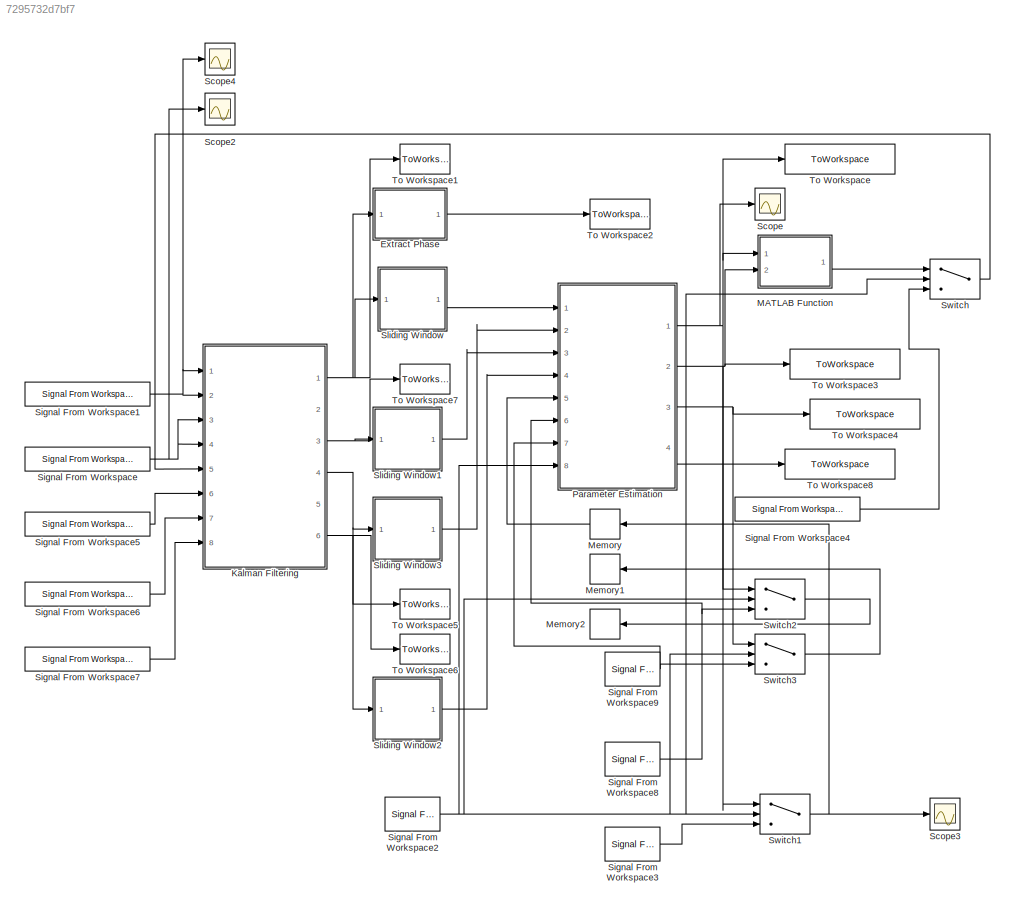
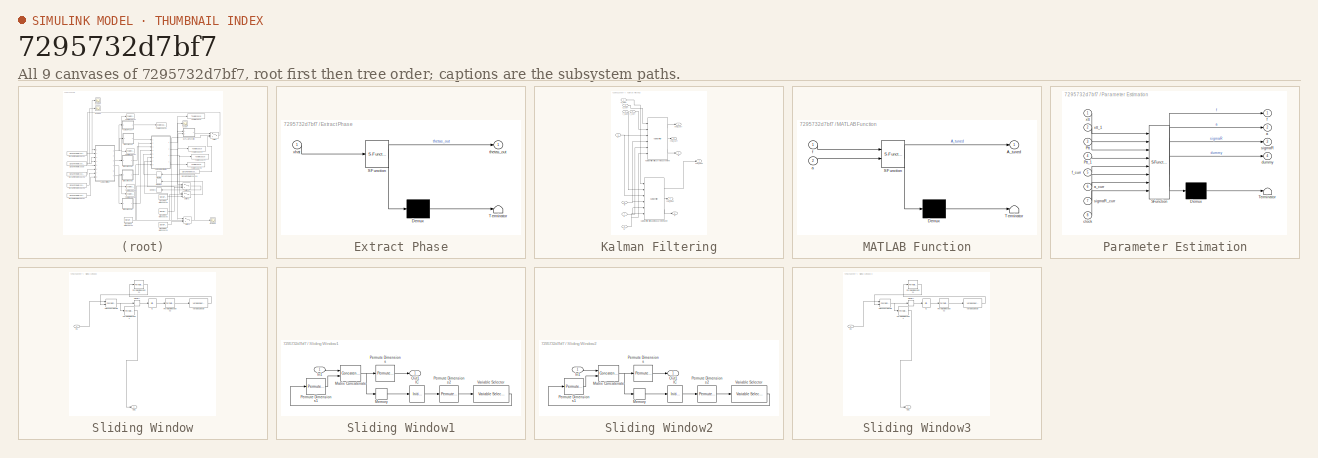
[diagram: thumbnail index - all 9 canvases of the model, root first then tree order]
MODEL slx_7295732d7bf7
KIND model
CONFIG AbsTol = auto
CONFIG EnableMultiTasking = off
CONFIG FixedStep = model.Ts
CONFIG MaxStep = auto
CONFIG MinStep = auto
CONFIG RelTol = 1e-3
CONFIG SampleTimeConstraint = Unconstrained
CONFIG Solver = FixedStepAuto
CONFIG SolverName = FixedStepAuto
CONFIG StartTime = 0.0
CONFIG StopTime = model.sim_dur
BLOCK [SubSystem] Extract Phase
  ErrorFcn = Stateflow.Translate.translate
  PermitHierarchicalResolution = ExplicitOnly
  Ports = [1, 1]
  RequestExecContextInheritance = off
  SFBlockType = MATLAB Function
  SystemSampleTime = model.Ts
  TreatAsAtomicUnit = on
BLOCK [Demux] Extract Phase/ Demux 
  Outputs = 1
  Ports = [1, 1]
BLOCK [S-Function] Extract Phase/ SFunction 
  EnableBusSupport = on
  FunctionName = sf_sfun
  PortCounts = [1 2]
  Ports = [1, 2]
  SFcnIsStateOwnerBlock = off
  SFunctionDeploymentMode = off
  Tag = Stateflow S-Function 2
BLOCK [Terminator] Extract Phase/ Terminator 
BLOCK [Outport] Extract Phase/thetas_out
  IconDisplay = Port number
BLOCK [Inport] Extract Phase/xhat
  IconDisplay = Port number
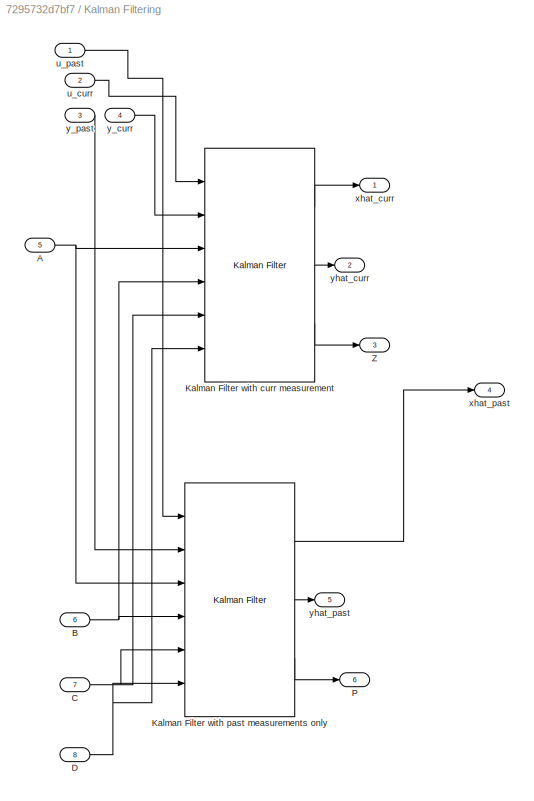
BLOCK [SubSystem] Kalman Filtering
  Ports = [8, 6]
  RequestExecContextInheritance = off
BLOCK [Inport] Kalman Filtering/A
  IconDisplay = Port number
  Port = 5
BLOCK [Inport] Kalman Filtering/B
  IconDisplay = Port number
  Port = 6
BLOCK [Inport] Kalman Filtering/C
  IconDisplay = Port number
  Port = 7
BLOCK [Inport] Kalman Filtering/D
  IconDisplay = Port number
  Port = 8
BLOCK [Reference] Kalman Filtering/Kalman Filter with curr measurement  REF=ctrlSharedLib/Kalman Filter
  Ports = [6, 3]
  SourceBlock = ctrlSharedLib/Kalman Filter
  SourceProductBaseCode = CT
  SourceProductName = Control System Toolbox
  SourceType = ctrlKalmanFilter
BLOCK [Reference] Kalman Filtering/Kalman Filter with past measurements only  REF=ctrlSharedLib/Kalman Filter
  Ports = [6, 3]
  SourceBlock = ctrlSharedLib/Kalman Filter
  SourceProductBaseCode = CT
  SourceProductName = Control System Toolbox
  SourceType = ctrlKalmanFilter
BLOCK [Outport] Kalman Filtering/P
  IconDisplay = Port number
  Port = 6
BLOCK [Outport] Kalman Filtering/Z
  IconDisplay = Port number
  Port = 3
BLOCK [Inport] Kalman Filtering/u_curr
  IconDisplay = Port number
  Port = 2
BLOCK [Inport] Kalman Filtering/u_past
  IconDisplay = Port number
BLOCK [Outport] Kalman Filtering/xhat_curr
  IconDisplay = Port number
BLOCK [Outport] Kalman Filtering/xhat_past
  IconDisplay = Port number
  Port = 4
BLOCK [Inport] Kalman Filtering/y_curr
  IconDisplay = Port number
  Port = 4
BLOCK [Inport] Kalman Filtering/y_past
  IconDisplay = Port number
  Port = 3
BLOCK [Outport] Kalman Filtering/yhat_curr
  IconDisplay = Port number
  Port = 2
BLOCK [Outport] Kalman Filtering/yhat_past
  IconDisplay = Port number
  Port = 5
BLOCK [SubSystem] MATLAB Function
  ErrorFcn = Stateflow.Translate.translate
  PermitHierarchicalResolution = ExplicitOnly
  Ports = [2, 1]
  RequestExecContextInheritance = off
  SFBlockType = MATLAB Function
  SystemSampleTime = model.Ts
  TreatAsAtomicUnit = on
BLOCK [Demux] MATLAB Function/ Demux 
  Outputs = 1
  Ports = [1, 1]
BLOCK [S-Function] MATLAB Function/ SFunction 
  EnableBusSupport = on
  FunctionName = sf_sfun
  Parameters = model
  PortCounts = [2 2]
  Ports = [2, 2]
  SFcnIsStateOwnerBlock = off
  SFunctionDeploymentMode = off
  Tag = Stateflow S-Function 4
BLOCK [Terminator] MATLAB Function/ Terminator 
BLOCK [Outport] MATLAB Function/A_tuned
  IconDisplay = Port number
BLOCK [Inport] MATLAB Function/a
  IconDisplay = Port number
  Port = 2
BLOCK [Inport] MATLAB Function/f
  IconDisplay = Port number
BLOCK [Memory] Memory
BLOCK [Memory] Memory1
BLOCK [Memory] Memory2
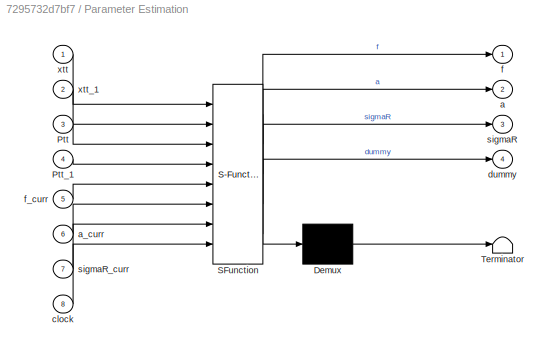
BLOCK [SubSystem] Parameter Estimation
  ErrorFcn = Stateflow.Translate.translate
  PermitHierarchicalResolution = ExplicitOnly
  Ports = [8, 4]
  RequestExecContextInheritance = off
  SFBlockType = MATLAB Function
  SystemSampleTime = model.Ts
  TreatAsAtomicUnit = on
BLOCK [Demux] Parameter Estimation/ Demux 
  Outputs = 1
  Ports = [1, 1]
BLOCK [S-Function] Parameter Estimation/ SFunction 
  EnableBusSupport = on
  FunctionName = sf_sfun
  Parameters = model
  PortCounts = [8 5]
  Ports = [8, 5]
  SFcnIsStateOwnerBlock = off
  SFunctionDeploymentMode = off
  Tag = Stateflow S-Function 1
BLOCK [Terminator] Parameter Estimation/ Terminator 
BLOCK [Inport] Parameter Estimation/Ptt
  IconDisplay = Port number
  Port = 3
BLOCK [Inport] Parameter Estimation/Ptt_1
  IconDisplay = Port number
  Port = 4
BLOCK [Outport] Parameter Estimation/a
  IconDisplay = Port number
  Port = 2
BLOCK [Inport] Parameter Estimation/a_curr
  IconDisplay = Port number
  Port = 6
BLOCK [Inport] Parameter Estimation/clock
  IconDisplay = Port number
  Port = 8
BLOCK [Outport] Parameter Estimation/dummy
  IconDisplay = Port number
  Port = 4
BLOCK [Outport] Parameter Estimation/f
  IconDisplay = Port number
BLOCK [Inport] Parameter Estimation/f_curr
  IconDisplay = Port number
  Port = 5
BLOCK [Outport] Parameter Estimation/sigmaR
  IconDisplay = Port number
  Port = 3
BLOCK [Inport] Parameter Estimation/sigmaR_curr
  IconDisplay = Port number
  Port = 7
BLOCK [Inport] Parameter Estimation/xtt
  IconDisplay = Port number
BLOCK [Inport] Parameter Estimation/xtt_1
  IconDisplay = Port number
  Port = 2
BLOCK [Scope] Scope
  Floating = off
  NumInputPorts = 1
  Ports = [1]
  ScopeSpecificationString = Simulink.scopes.TimeScopeBlockCfg('CurrentConfiguration', extmgr.ConfigurationSet(extmgr.Configuration('Core','General UI',true),extmgr.Configuration('Core','Source UI',true),extmgr.Configuration('Sources','WiredSimulink',true,'DataLoggingVariableName','ScopeData1'),extmgr.Configuration('Visuals','Time Domain',true,'SerializedDisplays',{struct('MinYLimReal','0.20465','MaxYLimReal','13.86615','YLab...<+1431ch>
BLOCK [Scope] Scope2
  Floating = off
  NumInputPorts = 1
  Ports = [1]
  ScopeSpecificationString = Simulink.scopes.TimeScopeBlockCfg('CurrentConfiguration', extmgr.ConfigurationSet(extmgr.Configuration('Core','General UI',true),extmgr.Configuration('Core','Source UI',true),extmgr.Configuration('Sources','WiredSimulink',true,'DataLoggingVariableName','ScopeData1'),extmgr.Configuration('Visuals','Time Domain',true,'SerializedDisplays',{struct('MinYLimReal','-0.48787','MaxYLimReal','0.48787','YLab...<+1451ch>
BLOCK [Scope] Scope3
  Floating = off
  NumInputPorts = 1
  Ports = [1]
  ScopeSpecificationString = Simulink.scopes.TimeScopeBlockCfg('CurrentConfiguration', extmgr.ConfigurationSet(extmgr.Configuration('Core','General UI',true),extmgr.Configuration('Core','Source UI',true),extmgr.Configuration('Sources','WiredSimulink',true,'DataLoggingVariableName','ScopeData1'),extmgr.Configuration('Visuals','Time Domain',true,'SerializedDisplays',{struct('MinYLimReal','0.5','MaxYLimReal','20.5','YLabelReal',...<+1336ch>
BLOCK [Scope] Scope4
  Floating = off
  NumInputPorts = 1
  Ports = [1]
  ScopeSpecificationString = Simulink.scopes.TimeScopeBlockCfg('CurrentConfiguration', extmgr.ConfigurationSet(extmgr.Configuration('Core','General UI',true),extmgr.Configuration('Core','Source UI',true),extmgr.Configuration('Sources','WiredSimulink',true),extmgr.Configuration('Visuals','Time Domain',true,'SerializedDisplays',{struct('MinYLimReal','-1.00000','MaxYLimReal','1.00000','YLabelReal','','MinYLimMag','0.00000','MaxY...<+1371ch>
BLOCK [Reference] Signal From Workspace  REF=dspsrcs4/Signal From
Workspace
  Ports = [0, 1]
  SourceBlock = dspsrcs4/Signal From\nWorkspace
  SourceProductBaseCode = DS
  SourceProductName = DSP System Toolbox
  SourceType = Signal From Workspace
BLOCK [Reference] Signal From Workspace1  REF=dspsrcs4/Signal From
Workspace
  Ports = [0, 1]
  SourceBlock = dspsrcs4/Signal From\nWorkspace
  SourceProductBaseCode = DS
  SourceProductName = DSP System Toolbox
  SourceType = Signal From Workspace
BLOCK [Reference] Signal From Workspace2  REF=dspsrcs4/Signal From
Workspace
  Ports = [0, 1]
  SourceBlock = dspsrcs4/Signal From\nWorkspace
  SourceProductBaseCode = DS
  SourceProductName = DSP System Toolbox
  SourceType = Signal From Workspace
BLOCK [Reference] Signal From Workspace3  REF=dspsrcs4/Signal From
Workspace
  Ports = [0, 1]
  SourceBlock = dspsrcs4/Signal From\nWorkspace
  SourceProductBaseCode = DS
  SourceProductName = DSP System Toolbox
  SourceType = Signal From Workspace
BLOCK [Reference] Signal From Workspace4  REF=dspsrcs4/Signal From
Workspace
  Ports = [0, 1]
  SourceBlock = dspsrcs4/Signal From\nWorkspace
  SourceProductBaseCode = DS
  SourceProductName = DSP System Toolbox
  SourceType = Signal From Workspace
BLOCK [Reference] Signal From Workspace5  REF=dspsrcs4/Signal From
Workspace
  Ports = [0, 1]
  SourceBlock = dspsrcs4/Signal From\nWorkspace
  SourceProductBaseCode = DS
  SourceProductName = DSP System Toolbox
  SourceType = Signal From Workspace
BLOCK [Reference] Signal From Workspace6  REF=dspsrcs4/Signal From
Workspace
  Ports = [0, 1]
  SourceBlock = dspsrcs4/Signal From\nWorkspace
  SourceProductBaseCode = DS
  SourceProductName = DSP System Toolbox
  SourceType = Signal From Workspace
BLOCK [Reference] Signal From Workspace7  REF=dspsrcs4/Signal From
Workspace
  Ports = [0, 1]
  SourceBlock = dspsrcs4/Signal From\nWorkspace
  SourceProductBaseCode = DS
  SourceProductName = DSP System Toolbox
  SourceType = Signal From Workspace
BLOCK [Reference] Signal From Workspace8  REF=dspsrcs4/Signal From
Workspace
  Ports = [0, 1]
  SourceBlock = dspsrcs4/Signal From\nWorkspace
  SourceProductBaseCode = DS
  SourceProductName = DSP System Toolbox
  SourceType = Signal From Workspace
BLOCK [Reference] Signal From Workspace9  REF=dspsrcs4/Signal From
Workspace
  Ports = [0, 1]
  SourceBlock = dspsrcs4/Signal From\nWorkspace
  SourceProductBaseCode = DS
  SourceProductName = DSP System Toolbox
  SourceType = Signal From Workspace
BLOCK [SubSystem] Sliding Window
  Ports = [1, 1]
  RequestExecContextInheritance = off
BLOCK [InitialCondition] Sliding Window/IC
  Value = zeros(2, model.param_est_length+1)
BLOCK [Inport] Sliding Window/In1
  IconDisplay = Port number
BLOCK [Concatenate] Sliding Window/Matrix Concatenate
  ConcatenateDimension = 2
  Mode = Multidimensional array
  Ports = [2, 1]
BLOCK [Memory] Sliding Window/Memory
  InheritSampleTime = on
BLOCK [Outport] Sliding Window/Out1
  IconDisplay = Port number
BLOCK [PermuteDimensions] Sliding Window/Permute Dimensions
BLOCK [PermuteDimensions] Sliding Window/Permute Dimensions1
BLOCK [PermuteDimensions] Sliding Window/Permute Dimensions2
BLOCK [Reference] Sliding Window/Variable Selector  REF=dspindex/Variable
Selector
  Ports = [1, 1]
  SourceBlock = dspindex/Variable\nSelector
  SourceProductBaseCode = DS
  SourceProductName = DSP System Toolbox
  SourceType = Variable Selector
BLOCK [SubSystem] Sliding Window1
  Ports = [1, 1]
  RequestExecContextInheritance = off
BLOCK [InitialCondition] Sliding Window1/IC
  Value = zeros(2, 2*(model.param_est_length+1))
BLOCK [Inport] Sliding Window1/In1
  IconDisplay = Port number
BLOCK [Concatenate] Sliding Window1/Matrix Concatenate
  ConcatenateDimension = 2
  Mode = Multidimensional array
  Ports = [2, 1]
BLOCK [Memory] Sliding Window1/Memory
  InheritSampleTime = on
BLOCK [Outport] Sliding Window1/Out1
  IconDisplay = Port number
BLOCK [PermuteDimensions] Sliding Window1/Permute Dimensions
BLOCK [PermuteDimensions] Sliding Window1/Permute Dimensions1
BLOCK [PermuteDimensions] Sliding Window1/Permute Dimensions2
BLOCK [Reference] Sliding Window1/Variable Selector  REF=dspindex/Variable
Selector
  Ports = [1, 1]
  SourceBlock = dspindex/Variable\nSelector
  SourceProductBaseCode = DS
  SourceProductName = DSP System Toolbox
  SourceType = Variable Selector
BLOCK [SubSystem] Sliding Window2
  Ports = [1, 1]
  RequestExecContextInheritance = off
BLOCK [InitialCondition] Sliding Window2/IC
  Value = zeros(2, 2*(model.param_est_length+1))
BLOCK [Inport] Sliding Window2/In1
  IconDisplay = Port number
BLOCK [Concatenate] Sliding Window2/Matrix Concatenate
  ConcatenateDimension = 2
  Mode = Multidimensional array
  Ports = [2, 1]
BLOCK [Memory] Sliding Window2/Memory
  InheritSampleTime = on
BLOCK [Outport] Sliding Window2/Out1
  IconDisplay = Port number
BLOCK [PermuteDimensions] Sliding Window2/Permute Dimensions
BLOCK [PermuteDimensions] Sliding Window2/Permute Dimensions1
BLOCK [PermuteDimensions] Sliding Window2/Permute Dimensions2
BLOCK [Reference] Sliding Window2/Variable Selector  REF=dspindex/Variable
Selector
  Ports = [1, 1]
  SourceBlock = dspindex/Variable\nSelector
  SourceProductBaseCode = DS
  SourceProductName = DSP System Toolbox
  SourceType = Variable Selector
BLOCK [SubSystem] Sliding Window3
  Ports = [1, 1]
  RequestExecContextInheritance = off
BLOCK [InitialCondition] Sliding Window3/IC
  Value = zeros(2, model.param_est_length+1)
BLOCK [Inport] Sliding Window3/In1
  IconDisplay = Port number
BLOCK [Concatenate] Sliding Window3/Matrix Concatenate
  ConcatenateDimension = 2
  Mode = Multidimensional array
  Ports = [2, 1]
BLOCK [Memory] Sliding Window3/Memory
  InheritSampleTime = on
BLOCK [Outport] Sliding Window3/Out1
  IconDisplay = Port number
BLOCK [PermuteDimensions] Sliding Window3/Permute Dimensions
BLOCK [PermuteDimensions] Sliding Window3/Permute Dimensions1
BLOCK [PermuteDimensions] Sliding Window3/Permute Dimensions2
BLOCK [Reference] Sliding Window3/Variable Selector  REF=dspindex/Variable
Selector
  Ports = [1, 1]
  SourceBlock = dspindex/Variable\nSelector
  SourceProductBaseCode = DS
  SourceProductName = DSP System Toolbox
  SourceType = Variable Selector
BLOCK [Switch] Switch
  InputSameDT = off
  SaturateOnIntegerOverflow = off
  Threshold = model.param_est_length
BLOCK [Switch] Switch1
  InputSameDT = off
  SaturateOnIntegerOverflow = off
  Threshold = 2
BLOCK [Switch] Switch2
  InputSameDT = off
  SaturateOnIntegerOverflow = off
  Threshold = 2
BLOCK [Switch] Switch3
  InputSameDT = off
  SaturateOnIntegerOverflow = off
  Threshold = 2
BLOCK [ToWorkspace] To Workspace
  MaxDataPoints = 1
  Ports = [1]
  SampleTime = model.Ts
  Save2DSignal = 2-D array (concatenate along first dimension)
  VariableName = f_calculated
BLOCK [ToWorkspace] To Workspace1
  MaxDataPoints = inf
  Ports = [1]
  SampleTime = model.Ts
  Save2DSignal = 2-D array (concatenate along first dimension)
  VariableName = xtt
BLOCK [ToWorkspace] To Workspace2
  MaxDataPoints = inf
  Ports = [1]
  SampleTime = model.Ts
  Save2DSignal = 2-D array (concatenate along first dimension)
  VariableName = thetas
BLOCK [ToWorkspace] To Workspace3
  MaxDataPoints = 2
  Ports = [1]
  SampleTime = model.Ts
  Save2DSignal = 2-D array (concatenate along first dimension)
  VariableName = a_calculated
BLOCK [ToWorkspace] To Workspace4
  MaxDataPoints = 1
  Ports = [1]
  SampleTime = model.Ts
  Save2DSignal = 2-D array (concatenate along first dimension)
  VariableName = sigma2_R_calculated
BLOCK [ToWorkspace] To Workspace5
  MaxDataPoints = inf
  Ports = [1]
  SampleTime = model.Ts
  Save2DSignal = 2-D array (concatenate along first dimension)
  VariableName = xtt_1
BLOCK [ToWorkspace] To Workspace6
  MaxDataPoints = inf
  Ports = [1]
  SampleTime = model.Ts
  Save2DSignal = 2-D array (concatenate along first dimension)
  VariableName = Ptt_1
BLOCK [ToWorkspace] To Workspace7
  MaxDataPoints = inf
  Ports = [1]
  SampleTime = model.Ts
  Save2DSignal = 2-D array (concatenate along first dimension)
  VariableName = Ptt
BLOCK [ToWorkspace] To Workspace8
  MaxDataPoints = inf
  Ports = [1]
  SampleTime = model.Ts
  Save2DSignal = 2-D array (concatenate along first dimension)
  VariableName = dummy
LINE Extract Phase:1 -> To Workspace2:1
NET Kalman Filtering/A:1 -> Kalman Filtering/Kalman Filter with curr measurement:3, Kalman Filtering/Kalman Filter with past measurements only:3
NET Kalman Filtering/B:1 -> Kalman Filtering/Kalman Filter with curr measurement:4, Kalman Filtering/Kalman Filter with past measurements only:4
NET Kalman Filtering/C:1 -> Kalman Filtering/Kalman Filter with curr measurement:5, Kalman Filtering/Kalman Filter with past measurements only:5
NET Kalman Filtering/D:1 -> Kalman Filtering/Kalman Filter with curr measurement:6, Kalman Filtering/Kalman Filter with past measurements only:6
LINE Kalman Filtering/Kalman Filter with curr measurement:1 -> Kalman Filtering/xhat_curr:1
LINE Kalman Filtering/Kalman Filter with curr measurement:2 -> Kalman Filtering/yhat_curr:1
LINE Kalman Filtering/Kalman Filter with curr measurement:3 -> Kalman Filtering/Z:1
LINE Kalman Filtering/Kalman Filter with past measurements only:1 -> Kalman Filtering/xhat_past:1
LINE Kalman Filtering/Kalman Filter with past measurements only:2 -> Kalman Filtering/yhat_past:1
LINE Kalman Filtering/Kalman Filter with past measurements only:3 -> Kalman Filtering/P:1
LINE Kalman Filtering/u_curr:1 -> Kalman Filtering/Kalman Filter with curr measurement:1
LINE Kalman Filtering/u_past:1 -> Kalman Filtering/Kalman Filter with past measurements only:1
LINE Kalman Filtering/y_curr:1 -> Kalman Filtering/Kalman Filter with curr measurement:2
LINE Kalman Filtering/y_past:1 -> Kalman Filtering/Kalman Filter with past measurements only:2
NET Kalman Filtering:1 -> Extract Phase:1, Sliding Window:1, To Workspace1:1
NET Kalman Filtering:3 -> Sliding Window1:1, To Workspace7:1
NET Kalman Filtering:4 -> Sliding Window3:1, To Workspace5:1
NET Kalman Filtering:6 -> Sliding Window2:1, To Workspace6:1
LINE MATLAB Function:1 -> Switch:1
LINE Memory:1 -> Parameter Estimation:5
NET Parameter Estimation:1 -> MATLAB Function:1, Scope:1, Switch1:1, To Workspace:1
NET Parameter Estimation:2 -> MATLAB Function:2, Switch2:1, To Workspace3:1
NET Parameter Estimation:3 -> Switch3:1, To Workspace4:1
LINE Parameter Estimation:4 -> To Workspace8:1
NET Signal From Workspace1:1 -> Kalman Filtering:1, Kalman Filtering:2, Scope4:1
NET Signal From Workspace2:1 -> Parameter Estimation:8, Switch1:2, Switch2:2, Switch3:2, Switch:2
LINE Signal From Workspace3:1 -> Switch1:3
LINE Signal From Workspace4:1 -> Switch:3
LINE Signal From Workspace5:1 -> Kalman Filtering:6
LINE Signal From Workspace6:1 -> Kalman Filtering:7
LINE Signal From Workspace7:1 -> Kalman Filtering:8
NET Signal From Workspace8:1 -> Parameter Estimation:6, Switch2:3
NET Signal From Workspace9:1 -> Parameter Estimation:7, Switch3:3
NET Signal From Workspace:1 -> Kalman Filtering:3, Kalman Filtering:4, Scope2:1
LINE Sliding Window/IC:1 -> Sliding Window/Permute Dimensions2:1
LINE Sliding Window/In1:1 -> Sliding Window/Matrix Concatenate:1
NET Sliding Window/Matrix Concatenate:1 -> Sliding Window/Memory:1, Sliding Window/Permute Dimensions:1
LINE Sliding Window/Memory:1 -> Sliding Window/IC:1
LINE Sliding Window/Permute Dimensions1:1 -> Sliding Window/Matrix Concatenate:2
LINE Sliding Window/Permute Dimensions2:1 -> Sliding Window/Variable Selector:1
LINE Sliding Window/Permute Dimensions:1 -> Sliding Window/Out1:1
LINE Sliding Window/Variable Selector:1 -> Sliding Window/Permute Dimensions1:1
LINE Sliding Window1/IC:1 -> Sliding Window1/Permute Dimensions2:1
LINE Sliding Window1/In1:1 -> Sliding Window1/Matrix Concatenate:1
NET Sliding Window1/Matrix Concatenate:1 -> Sliding Window1/Memory:1, Sliding Window1/Permute Dimensions:1
LINE Sliding Window1/Memory:1 -> Sliding Window1/IC:1
LINE Sliding Window1/Permute Dimensions1:1 -> Sliding Window1/Matrix Concatenate:2
LINE Sliding Window1/Permute Dimensions2:1 -> Sliding Window1/Variable Selector:1
LINE Sliding Window1/Permute Dimensions:1 -> Sliding Window1/Out1:1
LINE Sliding Window1/Variable Selector:1 -> Sliding Window1/Permute Dimensions1:1
LINE Sliding Window1:1 -> Parameter Estimation:3
LINE Sliding Window2/IC:1 -> Sliding Window2/Permute Dimensions2:1
LINE Sliding Window2/In1:1 -> Sliding Window2/Matrix Concatenate:1
NET Sliding Window2/Matrix Concatenate:1 -> Sliding Window2/Memory:1, Sliding Window2/Permute Dimensions:1
LINE Sliding Window2/Memory:1 -> Sliding Window2/IC:1
LINE Sliding Window2/Permute Dimensions1:1 -> Sliding Window2/Matrix Concatenate:2
LINE Sliding Window2/Permute Dimensions2:1 -> Sliding Window2/Variable Selector:1
LINE Sliding Window2/Permute Dimensions:1 -> Sliding Window2/Out1:1
LINE Sliding Window2/Variable Selector:1 -> Sliding Window2/Permute Dimensions1:1
LINE Sliding Window2:1 -> Parameter Estimation:4
LINE Sliding Window3/IC:1 -> Sliding Window3/Permute Dimensions2:1
LINE Sliding Window3/In1:1 -> Sliding Window3/Matrix Concatenate:1
NET Sliding Window3/Matrix Concatenate:1 -> Sliding Window3/Memory:1, Sliding Window3/Permute Dimensions:1
LINE Sliding Window3/Memory:1 -> Sliding Window3/IC:1
LINE Sliding Window3/Permute Dimensions1:1 -> Sliding Window3/Matrix Concatenate:2
LINE Sliding Window3/Permute Dimensions2:1 -> Sliding Window3/Variable Selector:1
LINE Sliding Window3/Permute Dimensions:1 -> Sliding Window3/Out1:1
LINE Sliding Window3/Variable Selector:1 -> Sliding Window3/Permute Dimensions1:1
LINE Sliding Window3:1 -> Parameter Estimation:2
LINE Sliding Window:1 -> Parameter Estimation:1
NET Switch1:1 -> Memory:1, Scope3:1
LINE Switch2:1 -> Memory2:1
LINE Switch3:1 -> Memory1:1
LINE Switch:1 -> Kalman Filtering:5
note: NET lines group one-source signal fan-out (src -> all destinations, sorted); 1:1 wires keep LINE
CHART Parameter Estimation states=1 transitions=1
  STATE_LABEL 'eML_blk_kernel()'
  STATE_LABEL "SCRIPT:\nfunction [f, a, sigmaR, dummy]  = parameter_estimation(xtt, xtt_1, Ptt, Ptt_1, model, f_curr, a_curr, sigmaR_curr, clock)\n\n%WARNING!!!!!! To-do: add dimensions_param = model.state_dimensions;\n%Right now, 2 is used as a dimension because Simulink complains when\n%variables are used for matrix dimensions. When the state space is\n%extended for artefact removal, change the 2's to a new value.\n%...<+3608ch>"
CHART Extract Phase states=1 transitions=1
  STATE_LABEL 'eML_blk_kernel()'
  STATE_LABEL 'SCRIPT:\nfunction thetas_out  = extract_phase(xhat)\nnum_rhythms = length(xhat)/2;\n% thetas_out = zeros(num_rhythms, 1);\n% \n% for j = 1:num_rhythms\n%     Im = xhat(2 * (j-1) + 2);\n%     Re = xhat(2 * (j-1) + 1);\n%     thetas_out(j, 1) = atan2(Im, Re);\n% end\n\nthetas_out = atan2(xhat(2:2:2*num_rhythms), xhat(1:2:2*(num_rhythms-1)+1))'
CHART MATLAB Function states=1 transitions=1
  STATE_LABEL 'eML_blk_kernel()'
  STATE_LABEL 'SCRIPT:\nfunction A_tuned = tune_A(f, a, model)\nangles = 2*pi*model.Ts*f;\nrot_cell = cell(1); % GENERALISE FOR MULTIPLE FREQ TRACKING\n\nfor j = 1:1 % model.num_rhythms GENERALISE FOR MULTIPLE FREQ TRACKING\n    rot_j = [cos(angles(j)) -sin(angles(j)); sin(angles(j)) cos(angles(j))];\n    rot_cell{j} = rot_j;\nend\nrot =blkdiag(rot_cell{1}); % GENERALISE FOR MULTIPLE FREQ TRACKING\n\nA_tuned = a*rot;\n'
